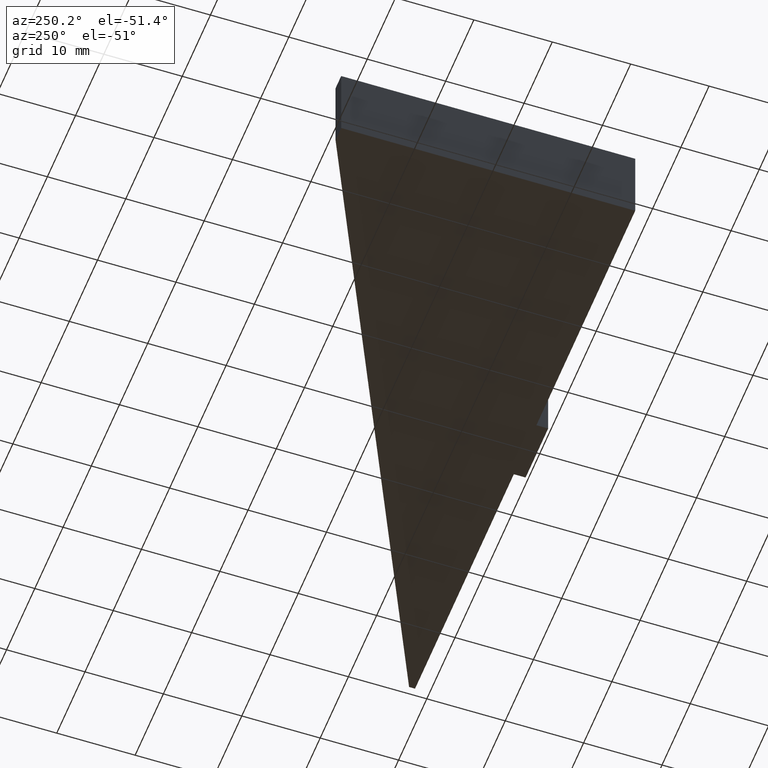
[diagram: clean part render]
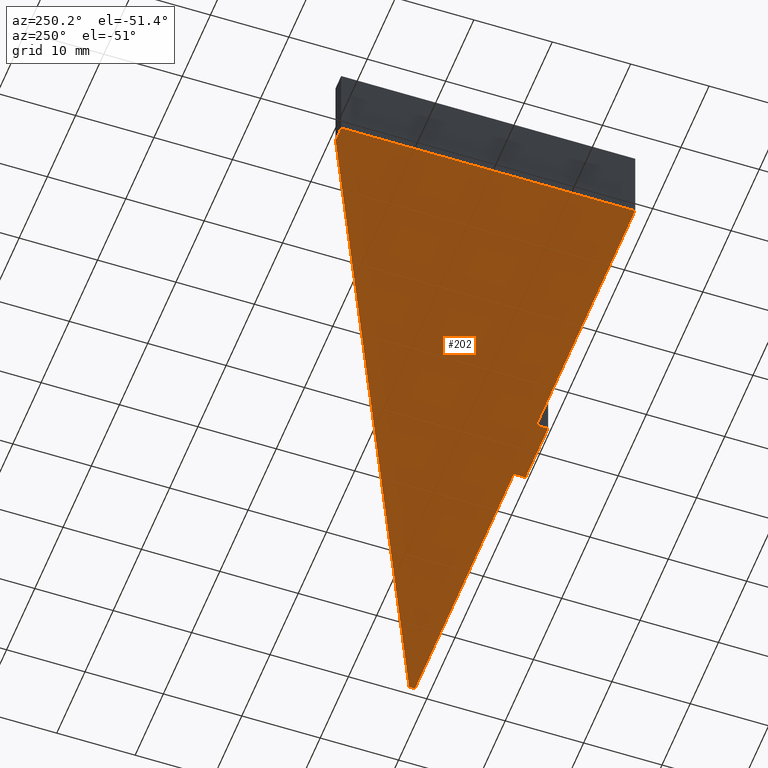
[diagram: same view with one face highlighted and labeled with its STEP entity id]
A machine part, auxiliary view. The second image highlights one B-rep face of the part: STEP entity #202.
In plain terms, the highlighted planar face has unit normal (0, 0, 1).
Its self-contained STEP definition (entity closure, byte-faithful):
#16=FACE_OUTER_BOUND('',#27,.T.);
#27=EDGE_LOOP('',(#137,#138,#139,#140,#141,#142,#143,#144,#145));
#38=LINE('',#302,#65);
#39=LINE('',#304,#66);
#40=LINE('',#306,#67);
#41=LINE('',#308,#68);
#42=LINE('',#310,#69);
#43=LINE('',#312,#70);
#44=LINE('',#314,#71);
#45=LINE('',#316,#72);
#46=LINE('',#317,#73);
#65=VECTOR('',#251,10.);
#66=VECTOR('',#252,10.);
#67=VECTOR('',#253,10.);
#68=VECTOR('',#254,10.);
#69=VECTOR('',#255,10.);
#70=VECTOR('',#256,10.);
#71=VECTOR('',#257,10.);
#72=VECTOR('',#258,10.);
#73=VECTOR('',#259,10.);
#92=VERTEX_POINT('',#300);
#93=VERTEX_POINT('',#301);
#94=VERTEX_POINT('',#303);
#95=VERTEX_POINT('',#305);
#96=VERTEX_POINT('',#307);
#97=VERTEX_POINT('',#309);
#98=VERTEX_POINT('',#311);
#99=VERTEX_POINT('',#313);
#100=VERTEX_POINT('',#315);
#110=EDGE_CURVE('',#92,#93,#38,.T.);
#111=EDGE_CURVE('',#94,#92,#39,.T.);
#112=EDGE_CURVE('',#95,#94,#40,.T.);
#113=EDGE_CURVE('',#96,#95,#41,.T.);
#114=EDGE_CURVE('',#97,#96,#42,.T.);
#115=EDGE_CURVE('',#98,#97,#43,.T.);
#116=EDGE_CURVE('',#99,#98,#44,.T.);
#117=EDGE_CURVE('',#100,#99,#45,.T.);
#118=EDGE_CURVE('',#93,#100,#46,.T.);
#137=ORIENTED_EDGE('',*,*,#110,.F.);
#138=ORIENTED_EDGE('',*,*,#111,.F.);
#139=ORIENTED_EDGE('',*,*,#112,.F.);
#140=ORIENTED_EDGE('',*,*,#113,.F.);
#141=ORIENTED_EDGE('',*,*,#114,.F.);
#142=ORIENTED_EDGE('',*,*,#115,.F.);
#143=ORIENTED_EDGE('',*,*,#116,.F.);
#144=ORIENTED_EDGE('',*,*,#117,.F.);
#145=ORIENTED_EDGE('',*,*,#118,.F.);
#191=PLANE('',#236);
#202=ADVANCED_FACE('',(#16),#191,.F.);
#236=AXIS2_PLACEMENT_3D('',#299,#249,#250);
#249=DIRECTION('center_axis',(0.,0.,1.));
#250=DIRECTION('ref_axis',(1.,0.,0.));
#251=DIRECTION('',(-1.41833683225905E-15,1.,0.));
#252=DIRECTION('',(1.,1.26882631385732E-16,0.));
#253=DIRECTION('',(0.,1.,0.));
#254=DIRECTION('',(1.,1.23875263402892E-16,0.));
#255=DIRECTION('',(0.,-1.,0.));
#256=DIRECTION('',(1.,1.26882631385732E-16,0.));
#257=DIRECTION('',(4.736951571734E-16,-1.,0.));
#258=DIRECTION('',(-1.,0.,0.));
#259=DIRECTION('',(-0.900318771402194,0.435231099372327,0.));
#299=CARTESIAN_POINT('Origin',(-45.9256888108539,13.0669112876008,-5.));
#300=CARTESIAN_POINT('',(1.28633613641181E-15,1.5,-5.));
#301=CARTESIAN_POINT('',(2.08166817117217E-16,2.26016450731054,-5.));
#302=CARTESIAN_POINT('',(2.08166817117217E-16,2.26016450731054,-5.));
#303=CARTESIAN_POINT('',(-35.,1.5,-5.));
#304=CARTESIAN_POINT('',(1.28633613641181E-15,1.5,-5.));
#305=CARTESIAN_POINT('',(-35.,-5.35554551636452E-16,-5.));
#306=CARTESIAN_POINT('',(-35.,1.5,-5.));
#307=CARTESIAN_POINT('',(-43.,-1.52655665885959E-15,-5.));
#308=CARTESIAN_POINT('',(-35.,-5.35554551636452E-16,-5.));
#309=CARTESIAN_POINT('',(-43.,1.5,-5.));
#310=CARTESIAN_POINT('',(-43.,-1.52655665885959E-15,-5.));
#311=CARTESIAN_POINT('',(-78.,1.49999999999999,-5.));
#312=CARTESIAN_POINT('',(-43.,1.5,-5.));
#313=CARTESIAN_POINT('',(-78.,39.,-5.));
#314=CARTESIAN_POINT('',(-78.,1.49999999999999,-5.));
#315=CARTESIAN_POINT('',(-76.,39.,-5.));
#316=CARTESIAN_POINT('',(-78.,39.,-5.));
#317=CARTESIAN_POINT('',(-76.,39.,-5.));